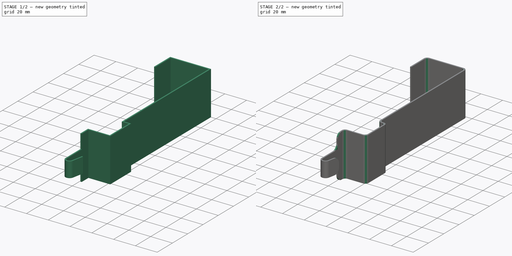
[diagram: build sequence overview — one tinted view per stage of 2, left to right]
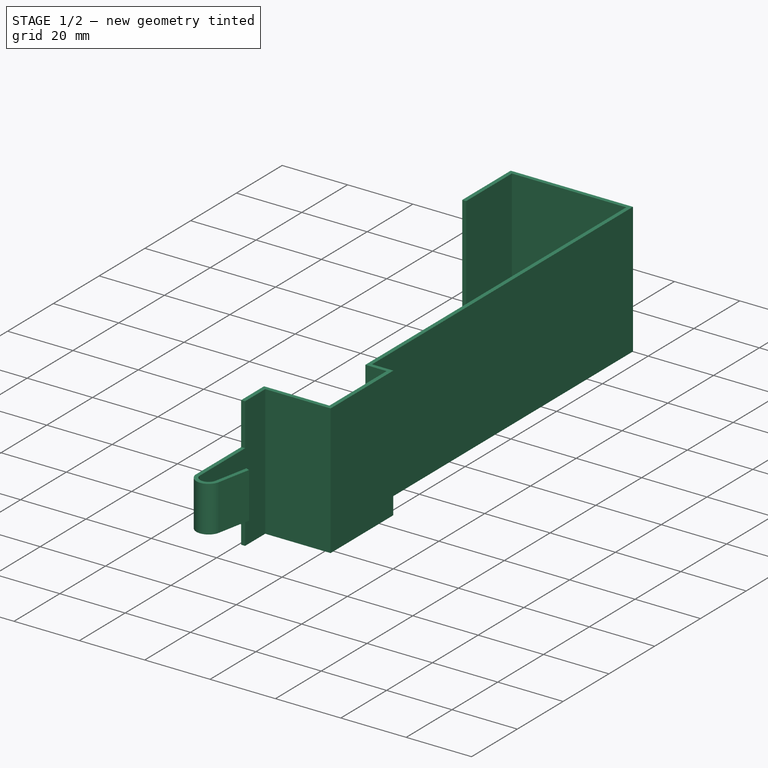
[diagram: stage 1 of 2 — iso view after this stage's code; geometry added in this stage tinted green]
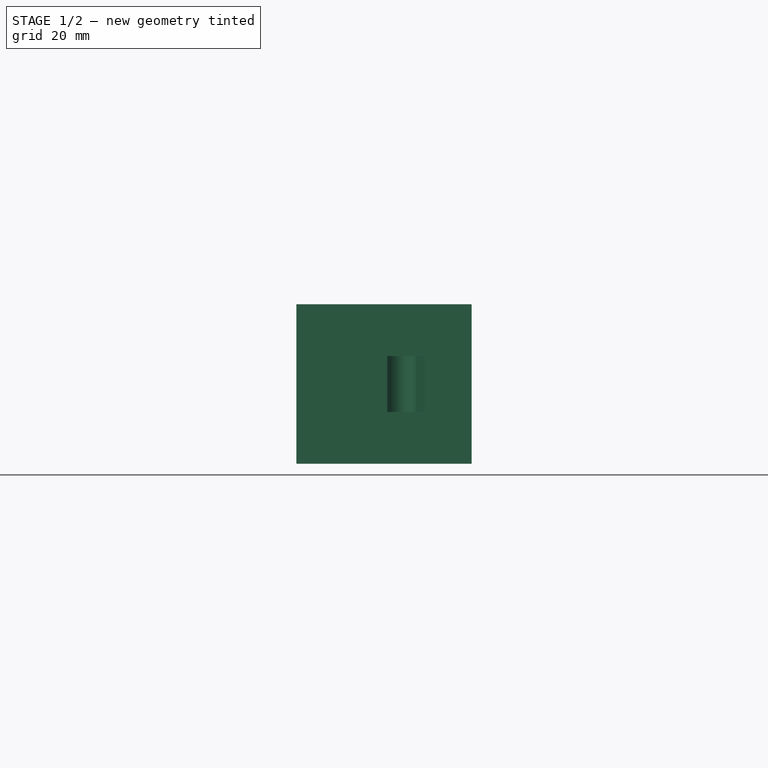
[diagram: stage 1 of 2 — front view after this stage's code; geometry added in this stage tinted green]
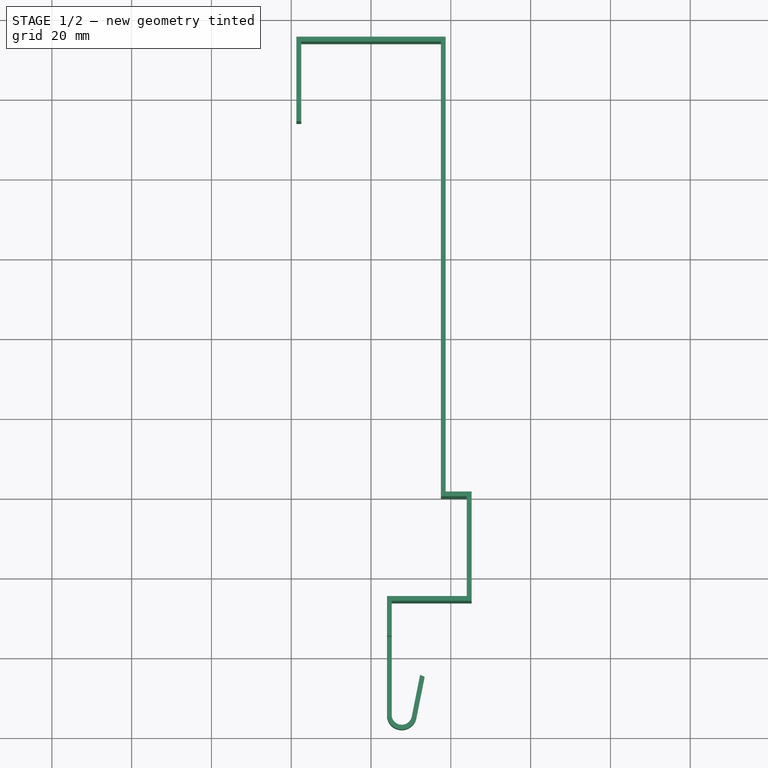
[diagram: stage 1 of 2 — top view after this stage's code; geometry added in this stage tinted green]
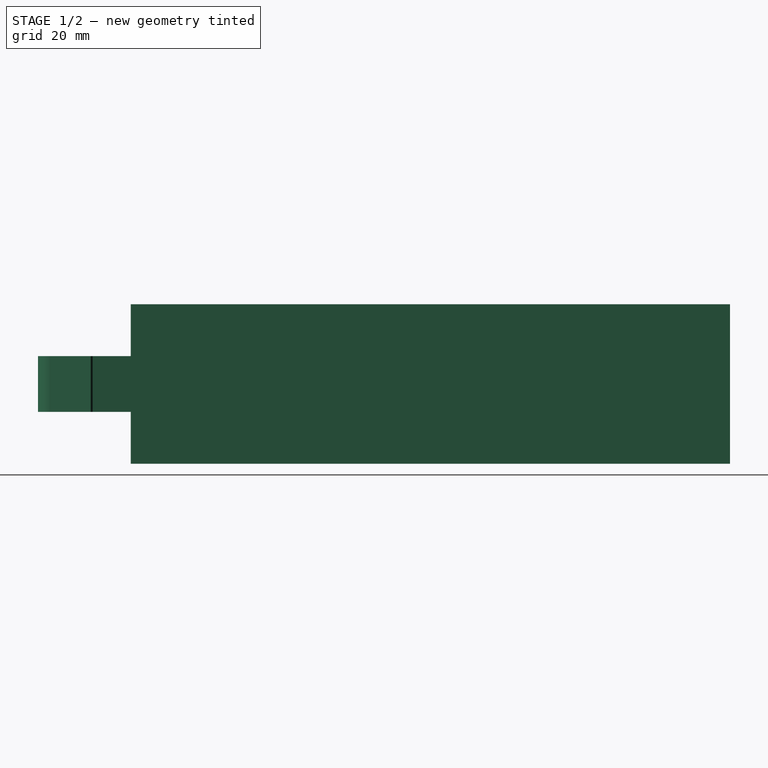
[diagram: stage 1 of 2 — right view after this stage's code; geometry added in this stage tinted green]
FCSTD DOCUMENT  (FreeCAD 0.19R20514 (Git))
Label: percha_puerta
License: All rights reserved
LicenseURL: http://en.wikipedia.org/wiki/All_rights_reserved
objects: Sketcher::SketchObject×2, PartDesign::Pad×2, PartDesign::Fillet×2, PartDesign::Body×1
note: 11 computed .brp shape members not serialized (recipe doc carries the construction recipe); baked Part::Feature solids carry a one-line shape summary decoded from their .brp

FEATURE [Sketcher::SketchObject] Sketch
  MapMode = 5
  Support = -> [XY_Plane]
  expr: Constraints[42] = 10 - 1.2
  expr: Constraints[41] = 25 + 1.2 + 1.2
  expr: Constraints[33] = 35 + 1.2 + 1.2
  sketch-geometry (16):
    g0: LineSegment StartX=-17.5 StartY=114 StartZ=0 EndX=17.5 EndY=114 EndZ=0
    g1: LineSegment StartX=17.5 StartY=114 StartZ=0 EndX=17.5 EndY=0 EndZ=0
    g2: LineSegment StartX=17.5 StartY=0 StartZ=0 EndX=24 EndY=0 EndZ=0
    g3: LineSegment StartX=24 StartY=0 StartZ=0 EndX=24 EndY=-25 EndZ=0
    g4: LineSegment StartX=24 StartY=-25 StartZ=0 EndX=4 EndY=-25 EndZ=0
    g5: LineSegment StartX=4 StartY=-25 StartZ=0 EndX=4 EndY=-35 EndZ=0
    g6: LineSegment StartX=-17.5 StartY=114 StartZ=0 EndX=-17.5 EndY=94 EndZ=0
    g7: LineSegment StartX=-18.7 StartY=115.2 StartZ=0 EndX=18.7 EndY=115.2 EndZ=0
    g8: LineSegment StartX=18.7 StartY=115.2 StartZ=0 EndX=18.7 EndY=1.2 EndZ=0
    g9: LineSegment StartX=18.7 StartY=1.2 StartZ=0 EndX=25.2 EndY=1.2 EndZ=0
    g10: LineSegment StartX=25.2 StartY=1.2 StartZ=0 EndX=25.2 EndY=-26.2 EndZ=0
    g11: LineSegment StartX=25.2 StartY=-26.2 StartZ=0 EndX=5.2 EndY=-26.2 EndZ=0
    g12: LineSegment StartX=5.2 StartY=-26.2 StartZ=0 EndX=5.2 EndY=-35 EndZ=0
    g13: LineSegment StartX=-18.7 StartY=115.2 StartZ=0 EndX=-18.7 EndY=94 EndZ=0
    g14: LineSegment StartX=-18.7 StartY=94 StartZ=0 EndX=-17.5 EndY=94 EndZ=0
    g15: LineSegment StartX=4 StartY=-35 StartZ=0 EndX=5.2 EndY=-35 EndZ=0
  constraints (47):
    c: Coincident(g0,g1)
    c: Vertical(g1)
    c: Coincident(g1,g2)
    c: Horizontal(g2)
    c: Coincident(g2,g3)
    c: Vertical(g3)
    c: Coincident(g3,g4)
    c: Coincident(g4,g5)
    c: Vertical(g5)
    c: Coincident(g0,g6)
    c: Vertical(g6)
    c: Symmetric(g0,g0,g-2)
    c: Perpendicular(g4,g3)
    c: DistanceX(g0,g0) = 35
    c: DistanceY(g6,g6) = 20
    c: DistanceY(g1,g1) = 114
    c: DistanceX(g2,g2) = 6.5
    c: DistanceY(g3,g3) = 25
    c: DistanceX(g4,g4) = 20
    c: DistanceY(g5,g5) = 10
    c: PointOnObject(g1,g-1)
    c: Coincident(g7,g8)
    c: Vertical(g8)
    c: Coincident(g8,g9)
    c: Horizontal(g9)
    c: Coincident(g9,g10)
    c: Vertical(g10)
    c: Coincident(g10,g11)
    c: Coincident(g11,g12)
    c: Vertical(g12)
    c: Coincident(g7,g13)
    c: Vertical(g13)
    c: Perpendicular(g11,g10)
    c: DistanceX(g7,g7) = 37.4
    c: DistanceX(g7,g0) = 1.2
    c: DistanceY(g13,g13) = 21.2
    c: Horizontal(g13,g6)
    c: Horizontal(g7)
    c: Equal(g1,g8)
    c: Equal(g2,g9)
    c: Equal(g11,g4)
    c: DistanceY(g10,g10) = 27.4
    c: DistanceY(g12,g12) = 8.8
    c: Coincident(g14,g6)
    c: Coincident(g14,g13)
    c: Coincident(g15,g12)
    c: Coincident(g15,g5)
FEATURE [PartDesign::Pad] Pad
  Length = 40
  Length2 = 100
  Profile = -> Sketch
  Type = 0
FEATURE [Sketcher::SketchObject] Sketch001
  AttachmentOffset = pos=(0,0,20) rot=(0,0,1;0rad)
  ExternalGeometry = -> [Pad]
  MapMode = 5
  Placement = pos=(0,0,20) rot=(0,0,1;0rad)
  Support = -> [XY_Plane]
  sketch-geometry (9):
    g0: LineSegment StartX=4 StartY=-35 StartZ=0 EndX=4 EndY=-55 EndZ=0
    g1: LineSegment StartX=5.2 StartY=-55 StartZ=0 EndX=5.2 EndY=-35 EndZ=0
    g2: LineSegment StartX=5.2 StartY=-35 StartZ=0 EndX=4 EndY=-35 EndZ=0
    g3: ArcOfCircle CenterX=7.7 CenterY=-54.5 CenterZ=0 NormalX=0 NormalY=0 NormalZ=1 AngleXU=0 Radius=2.54951 StartAngle=3.33899 EndAngle=6.08579
    g4: GeomPoint X=11.4 Y=-55 Z=0
    g5: ArcOfCircle CenterX=7.7 CenterY=-54.5 CenterZ=0 NormalX=0 NormalY=0 NormalZ=1 AngleXU=0 Radius=3.73363 StartAngle=3.27591 EndAngle=6.14886
    g6: LineSegment StartX=10.2 StartY=-55 StartZ=0 EndX=12.2923 EndY=-44.5385 EndZ=0
    g7: LineSegment StartX=12.2923 StartY=-44.5385 StartZ=0 EndX=13.4 EndY=-45 EndZ=0
    g8: LineSegment StartX=13.4 StartY=-45 StartZ=0 EndX=11.4 EndY=-55 EndZ=0
  constraints (23):
    c: Vertical(g0)
    c: Vertical(g1)
    c: Coincident(g2,g0)
    c: Coincident(g2,g1)
    c: Coincident(g1,g-4)
    c: Coincident(g0,g-3)
    c: DistanceY(g0,g0) = 20
    c: Equal(g0,g1)
    c: Coincident(g3,g1)
    c: Horizontal(g1,g3)
    c: DistanceX(g1,g3) = 5
    c: DistanceY(g1,g3) = 0.5
    c: Horizontal(g3,g4)
    c: Coincident(g5,g0)
    c: Coincident(g5,g4)
    c: Coincident(g3,g5)
    c: Tangent(g3,g6) = -1.5708
    c: Coincident(g6,g7)
    c: Coincident(g7,g8)
    c: Coincident(g8,g4)
    c: Parallel(g6,g8)
    c: Distance(g7) = 1.2
    c: DistanceY(g8,g8) = 10
FEATURE [PartDesign::Pad] Pad001
  BaseFeature = -> Pad
  Length = 14
  Length2 = 100
  Midplane = true
  Profile = -> Sketch001
  Type = 0
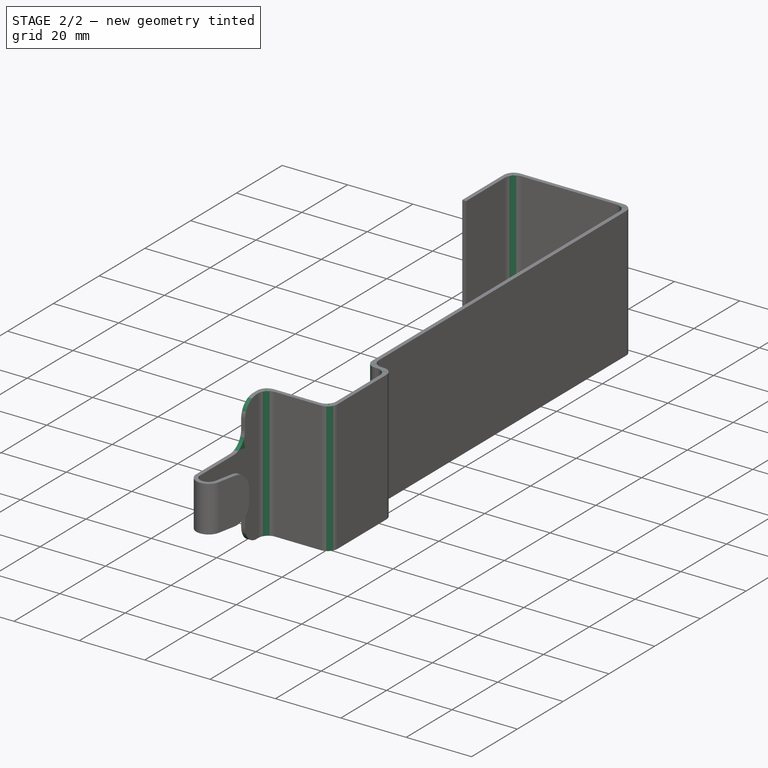
[diagram: stage 2 of 2 — iso view after this stage's code; geometry added in this stage tinted green]
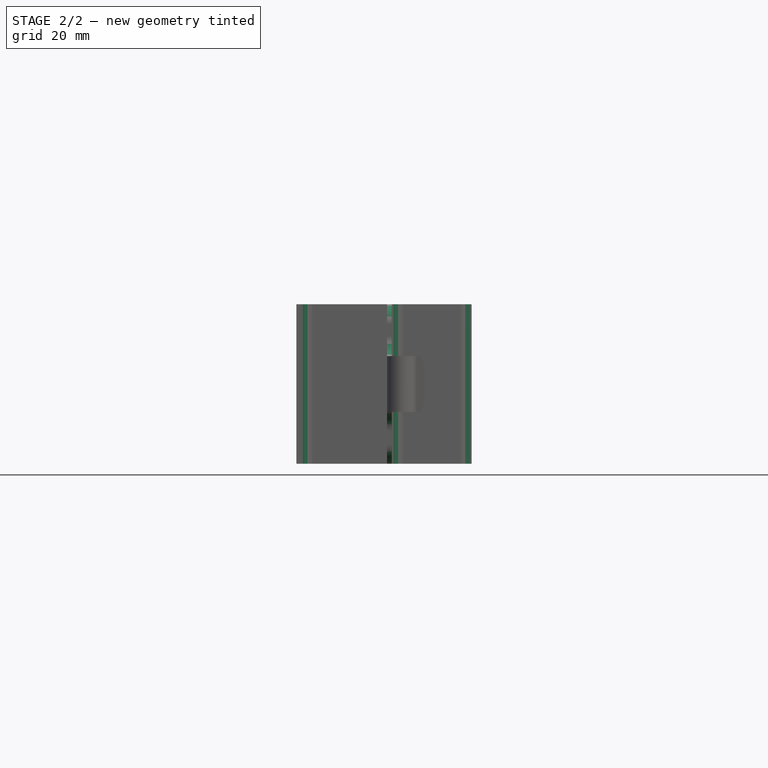
[diagram: stage 2 of 2 — front view after this stage's code; geometry added in this stage tinted green]
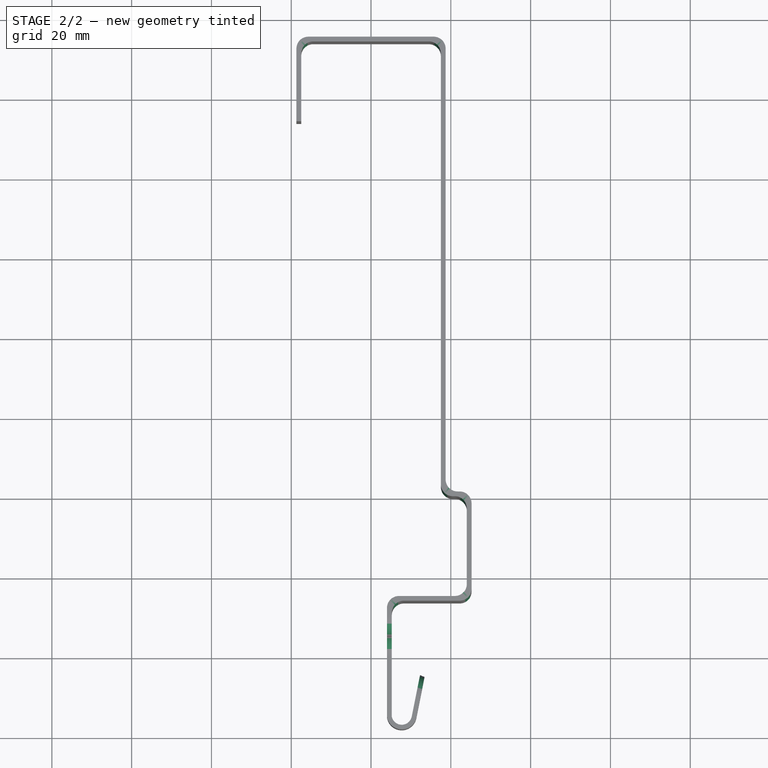
[diagram: stage 2 of 2 — top view after this stage's code; geometry added in this stage tinted green]
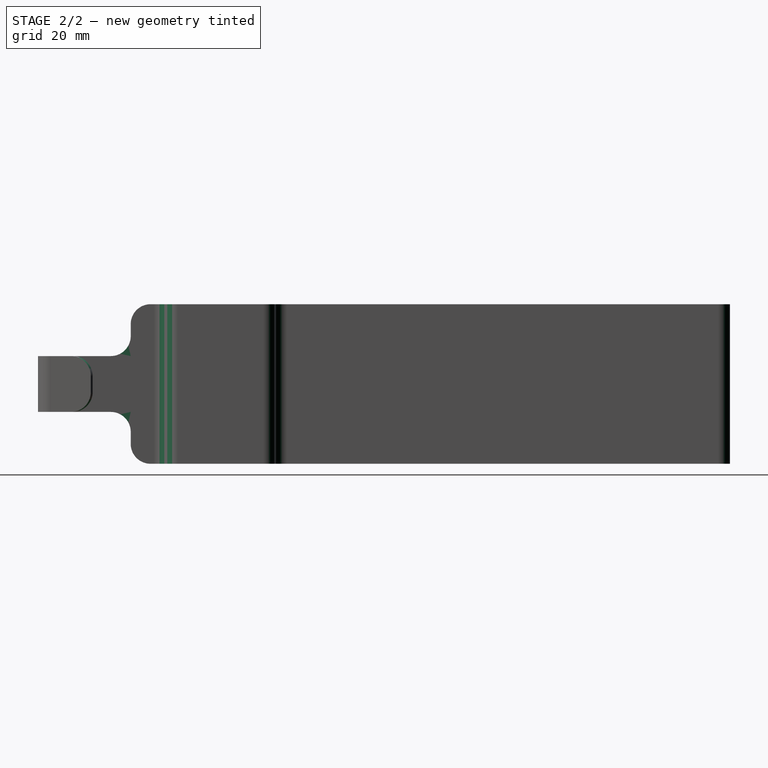
[diagram: stage 2 of 2 — right view after this stage's code; geometry added in this stage tinted green]
FEATURE [PartDesign::Fillet] Fillet
  Base = -> Pad001 [Edge42,Edge43,Edge40,Edge39,Edge38,Edge41,Edge52,Edge53,Edge5,Edge49,Edge1,Edge37]
  BaseFeature = -> Pad001
  Radius = 3
  SupportTransform = true
FEATURE [PartDesign::Fillet] Fillet001
  Base = -> Fillet [Edge29,Edge85,Edge90,Edge58,Edge104,Edge97]
  BaseFeature = -> Fillet
  Radius = 5
  SupportTransform = true
FEATURE [PartDesign::Body] Body
  Group = -> [Sketch,Pad,Sketch001,Pad001,Fillet,Fillet001]
  Origin = -> Origin
  Tip = -> Fillet001
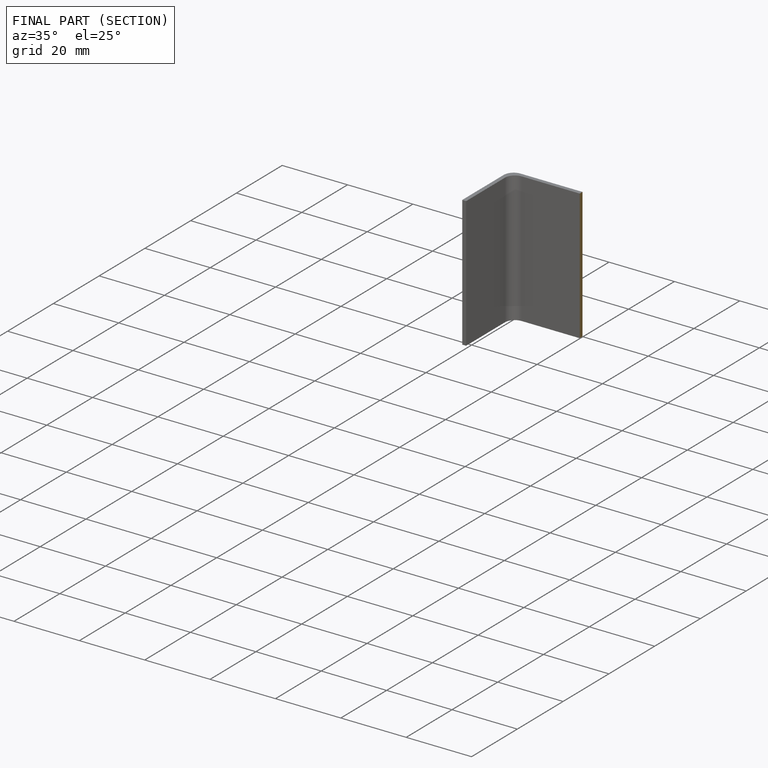
[diagram: finished part — half-section view (interior)]
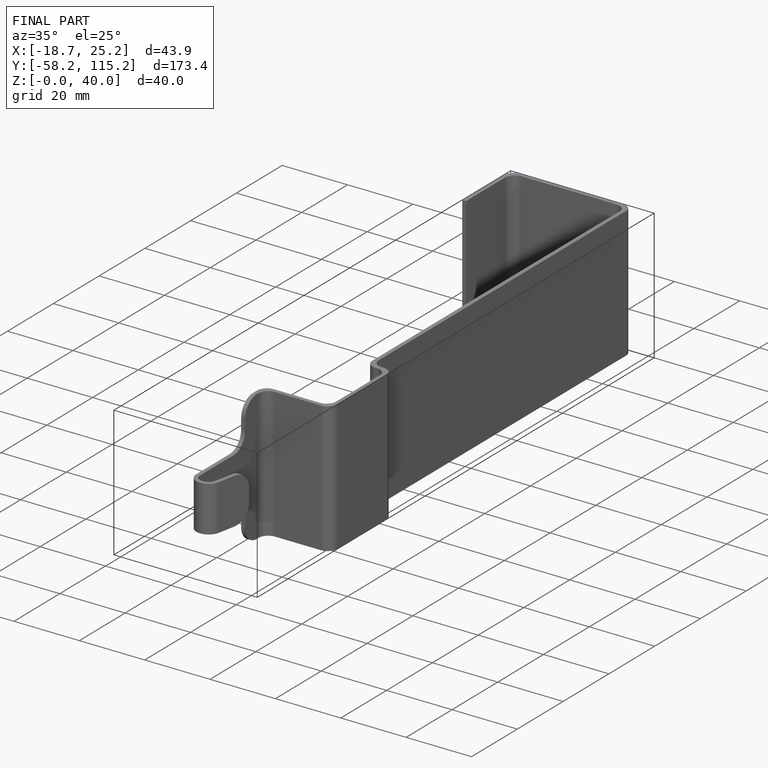
[diagram: finished part — iso view with bounding-box wireframe]
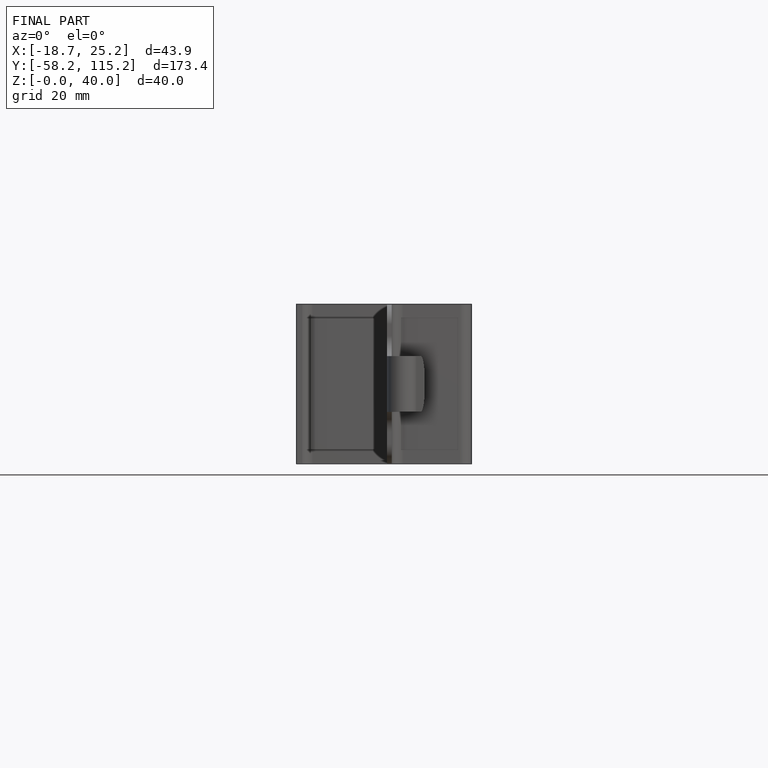
[diagram: finished part — front view with bounding-box wireframe]
